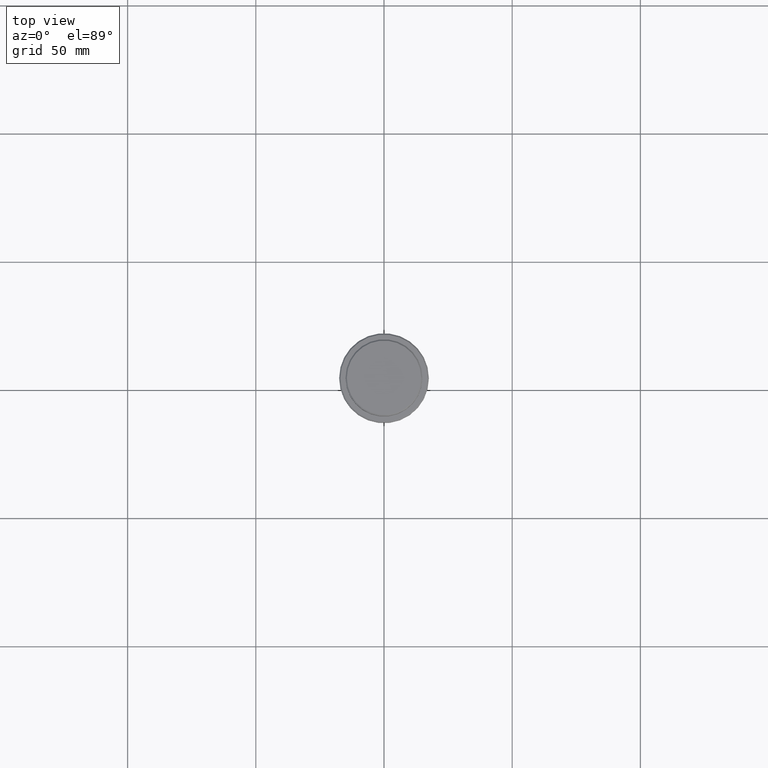
[diagram: clean part render]
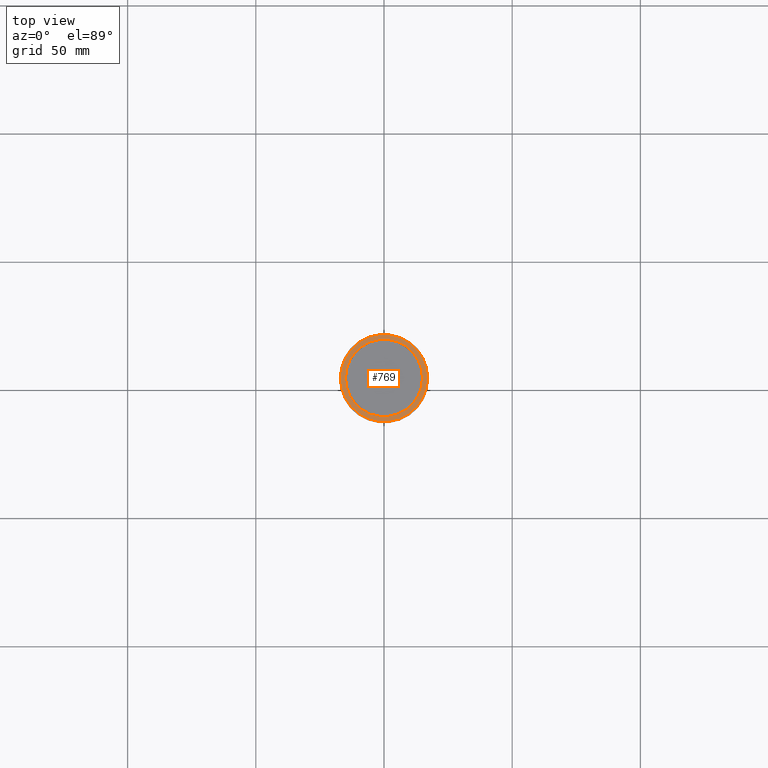
[diagram: same view with one face highlighted and labeled with its STEP entity id]
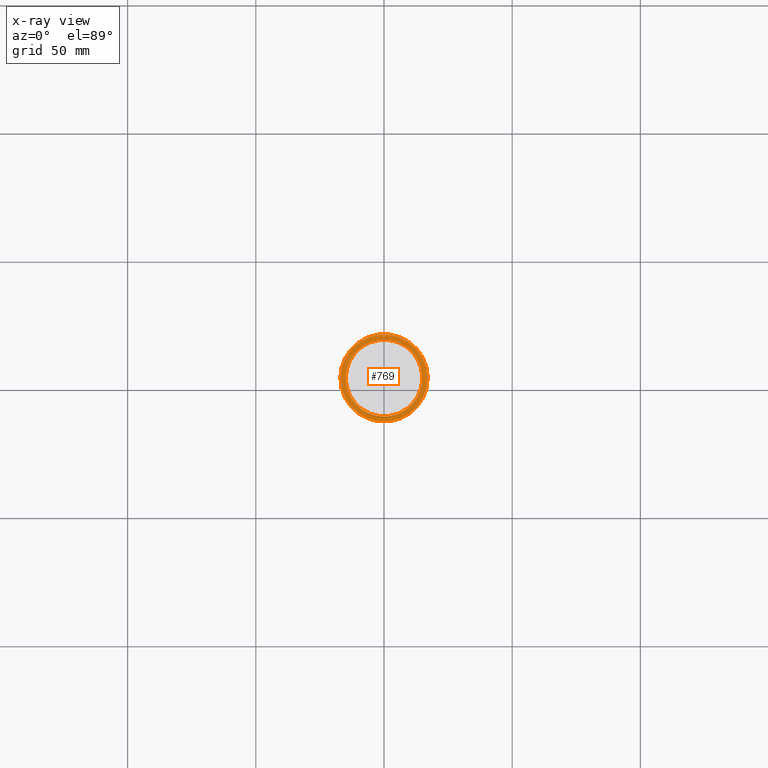
[diagram: x-ray of the same camera — body ghosted, the highlighted face saturated]
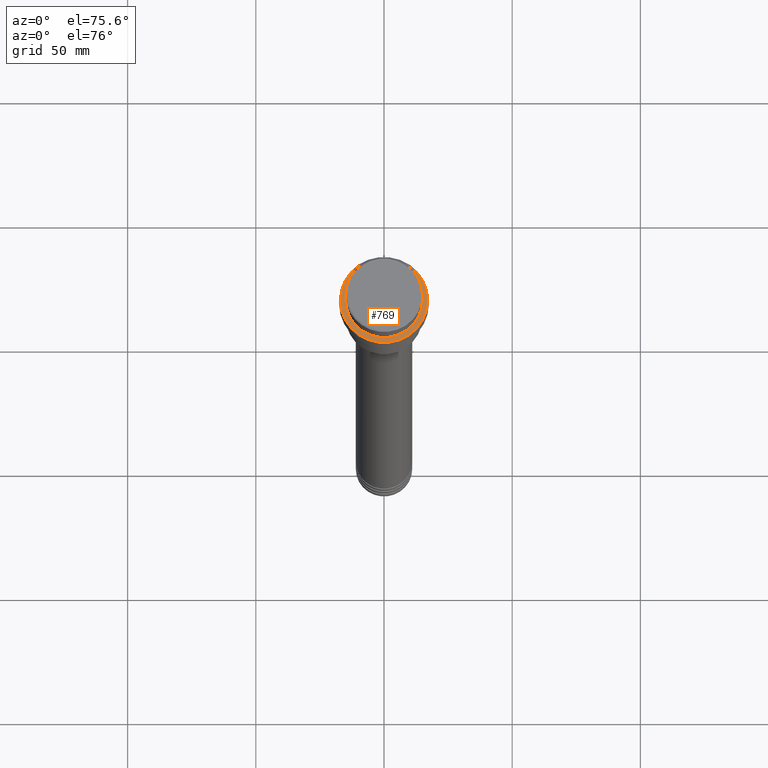
[diagram: same view with one face highlighted and labeled with its STEP entity id]
A machine part, top view. The second image highlights one B-rep face of the part: STEP entity #769.
The next image is the same camera in x-ray: the body ghosted, the highlighted face saturated — about 0% of this face is hidden behind the body in this view.
A second angle (auxiliary view) of the same face is appended — the face is thin or edge-on in the first view.
In plain terms, the highlighted planar face has unit normal (0, -0, 1).
Its self-contained STEP definition (entity closure, byte-faithful):
#38 = CARTESIAN_POINT ( 'NONE',  ( 0.000000000000000000, 0.000000000000000000, -9.000000000000000000 ) ) ;
#129 = VERTEX_POINT ( 'NONE', #517 ) ;
#168 = CIRCLE ( 'NONE', #1402, 16.99999999999996092 ) ;
#196 = EDGE_LOOP ( 'NONE', ( #422, #1219 ) ) ;
#222 = CARTESIAN_POINT ( 'NONE',  ( 0.000000000000000000, 0.000000000000000000, -9.000000000000000000 ) ) ;
#234 = EDGE_CURVE ( 'NONE', #757, #129, #168, .T. ) ;
#281 = DIRECTION ( 'NONE',  ( 1.000000000000000000, 0.000000000000000000, 0.000000000000000000 ) ) ;
#289 = CIRCLE ( 'NONE', #1095, 16.99999999999996092 ) ;
#296 = DIRECTION ( 'NONE',  ( 0.000000000000000000, 0.000000000000000000, -1.000000000000000000 ) ) ;
#367 = EDGE_CURVE ( 'NONE', #831, #491, #1046, .T. ) ;
#371 = DIRECTION ( 'NONE',  ( 1.000000000000000000, 0.000000000000000000, 0.000000000000000000 ) ) ;
#397 = CARTESIAN_POINT ( 'NONE',  ( 0.000000000000000000, 0.000000000000000000, -9.000000000000000000 ) ) ;
#401 = PLANE ( 'NONE',  #1143 ) ;
#411 = EDGE_LOOP ( 'NONE', ( #1111, #727 ) ) ;
#422 = ORIENTED_EDGE ( 'NONE', *, *, #367, .T. ) ;
#427 = DIRECTION ( 'NONE',  ( 1.000000000000000000, 0.000000000000000000, 0.000000000000000000 ) ) ;
#463 = CARTESIAN_POINT ( 'NONE',  ( -14.99999999999999289, 1.836970198721028800E-15, -9.000000000000000000 ) ) ;
#474 = CARTESIAN_POINT ( 'NONE',  ( 14.99999999999999289, 0.000000000000000000, -9.000000000000000000 ) ) ;
#491 = VERTEX_POINT ( 'NONE', #463 ) ;
#493 = DIRECTION ( 'NONE',  ( 0.000000000000000000, 0.000000000000000000, -1.000000000000000000 ) ) ;
#517 = CARTESIAN_POINT ( 'NONE',  ( 16.99999999999996092, 2.112515728529182095E-15, -9.000000000000000000 ) ) ;
#609 = DIRECTION ( 'NONE',  ( 1.000000000000000000, 0.000000000000000000, 0.000000000000000000 ) ) ;
#627 = CARTESIAN_POINT ( 'NONE',  ( -16.99999999999996092, 0.000000000000000000, -9.000000000000000000 ) ) ;
#650 = EDGE_CURVE ( 'NONE', #129, #757, #289, .T. ) ;
#727 = ORIENTED_EDGE ( 'NONE', *, *, #650, .T. ) ;
#757 = VERTEX_POINT ( 'NONE', #627 ) ;
#769 = ADVANCED_FACE ( 'NONE', ( #956, #1377 ), #401, .T. ) ;
#804 = AXIS2_PLACEMENT_3D ( 'NONE', #397, #493, #609 ) ;
#831 = VERTEX_POINT ( 'NONE', #474 ) ;
#844 = CARTESIAN_POINT ( 'NONE',  ( 0.000000000000000000, 14.49999999999999467, -9.000000000000000000 ) ) ;
#956 = FACE_OUTER_BOUND ( 'NONE', #411, .T. ) ;
#1037 = DIRECTION ( 'NONE',  ( -0.000000000000000000, -0.000000000000000000, 1.000000000000000000 ) ) ;
#1046 = CIRCLE ( 'NONE', #1139, 14.99999999999999289 ) ;
#1079 = EDGE_CURVE ( 'NONE', #491, #831, #1405, .T. ) ;
#1095 = AXIS2_PLACEMENT_3D ( 'NONE', #38, #1037, #1128 ) ;
#1111 = ORIENTED_EDGE ( 'NONE', *, *, #234, .T. ) ;
#1128 = DIRECTION ( 'NONE',  ( 1.000000000000000000, 0.000000000000000000, 0.000000000000000000 ) ) ;
#1139 = AXIS2_PLACEMENT_3D ( 'NONE', #1269, #296, #427 ) ;
#1143 = AXIS2_PLACEMENT_3D ( 'NONE', #844, #1371, #281 ) ;
#1173 = DIRECTION ( 'NONE',  ( -0.000000000000000000, -0.000000000000000000, 1.000000000000000000 ) ) ;
#1219 = ORIENTED_EDGE ( 'NONE', *, *, #1079, .T. ) ;
#1269 = CARTESIAN_POINT ( 'NONE',  ( 0.000000000000000000, 0.000000000000000000, -9.000000000000000000 ) ) ;
#1371 = DIRECTION ( 'NONE',  ( 0.000000000000000000, -0.000000000000000000, 1.000000000000000000 ) ) ;
#1377 = FACE_BOUND ( 'NONE', #196, .T. ) ;
#1402 = AXIS2_PLACEMENT_3D ( 'NONE', #222, #1173, #371 ) ;
#1405 = CIRCLE ( 'NONE', #804, 14.99999999999999289 ) ;